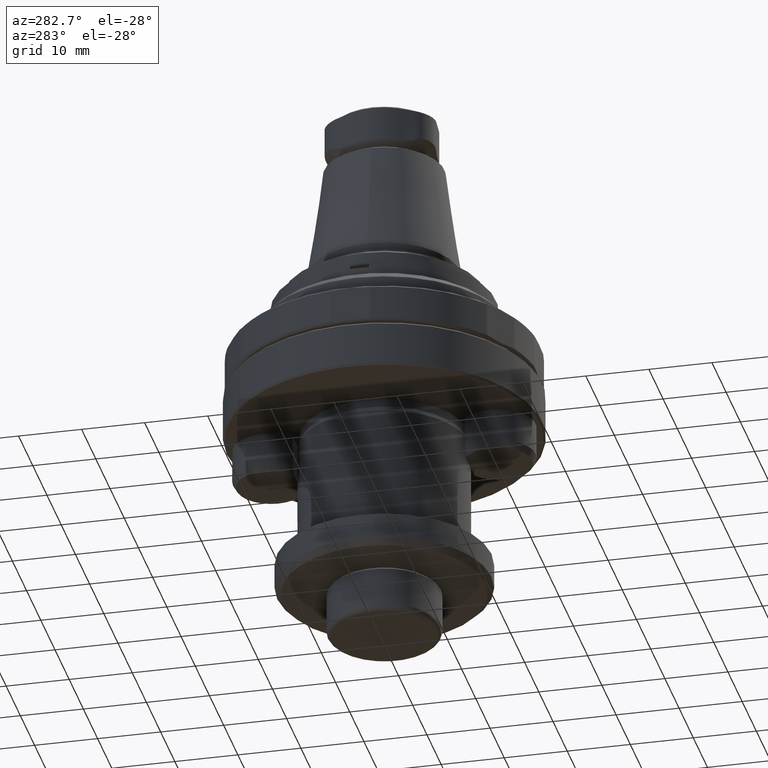
[diagram: clean part render]
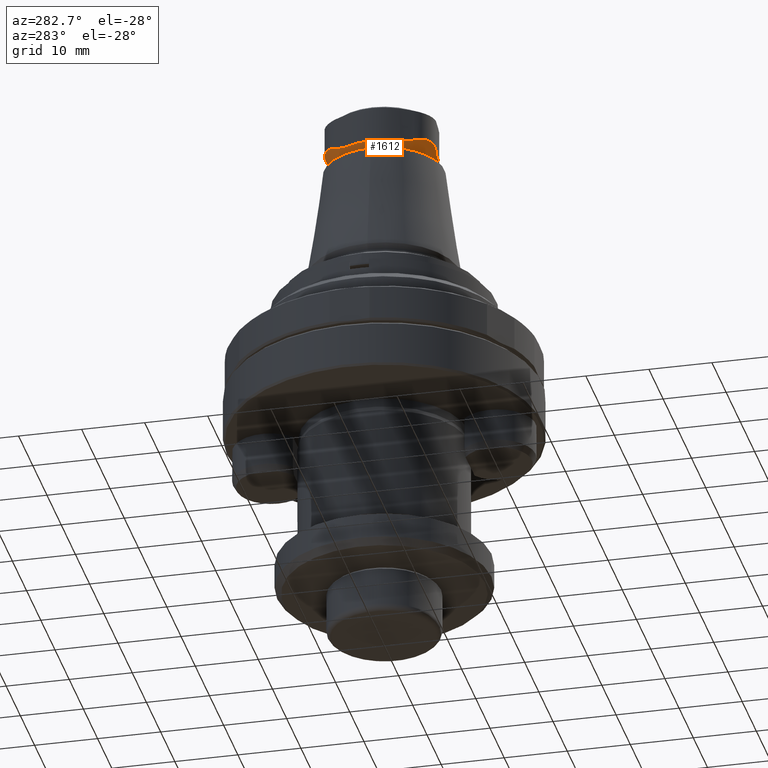
[diagram: same view with one face highlighted and labeled with its STEP entity id]
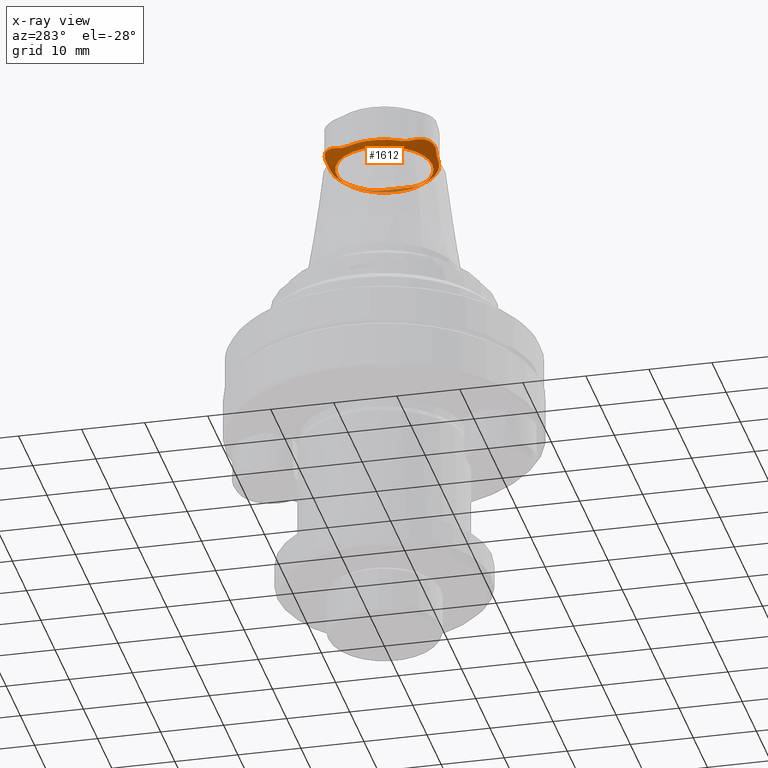
[diagram: x-ray of the same camera — body ghosted, the highlighted face saturated]
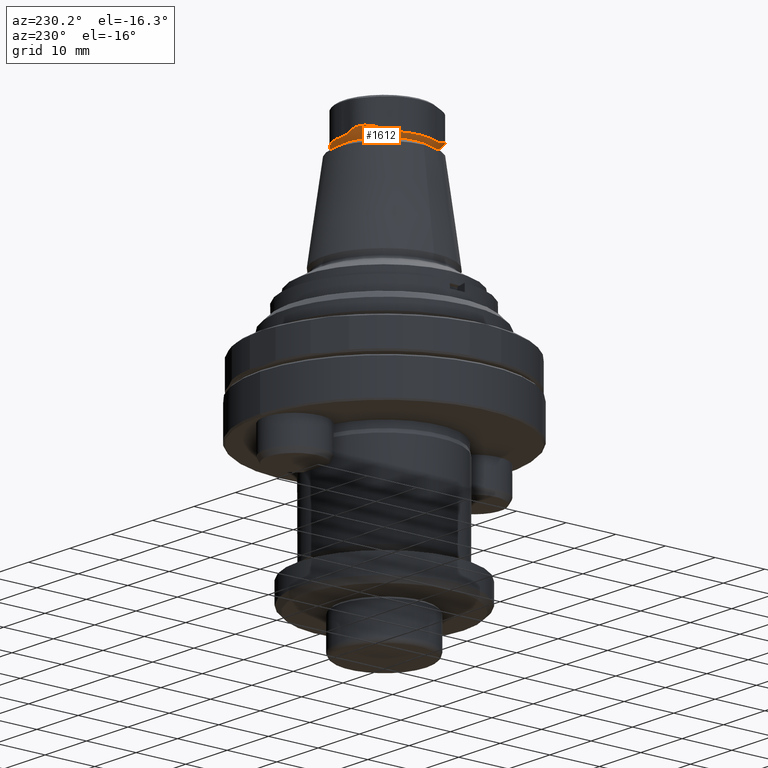
[diagram: same view with one face highlighted and labeled with its STEP entity id]
A machine part, auxiliary view. The second image highlights one B-rep face of the part: STEP entity #1612.
The next image is the same camera in x-ray: the body ghosted, the highlighted face saturated — about 10% of this face is hidden behind the body in this view.
A second angle (auxiliary view) of the same face is appended — the face is thin or edge-on in the first view.
In plain terms, the highlighted conical surface has half-angle 50 deg.
Its self-contained STEP definition (entity closure, byte-faithful):
#278=B_SPLINE_CURVE_WITH_KNOTS('',3,(#2526,#2527,#2528,#2529),
 .UNSPECIFIED.,.F.,.F.,(4,4),(0.00220573348403991,0.00220641296792716),
 .UNSPECIFIED.);
#279=B_SPLINE_CURVE_WITH_KNOTS('',3,(#2535,#2536,#2537,#2538),
 .UNSPECIFIED.,.F.,.F.,(4,4),(2.13829619546242E-7,6.36102570339594E-7),
 .UNSPECIFIED.);
#280=B_SPLINE_CURVE_WITH_KNOTS('',3,(#2544,#2545,#2546,#2547),
 .UNSPECIFIED.,.F.,.F.,(4,4),(0.000711073122248395,0.000711495386673685),
 .UNSPECIFIED.);
#281=B_SPLINE_CURVE_WITH_KNOTS('',3,(#2553,#2554,#2555,#2556),
 .UNSPECIFIED.,.F.,.F.,(4,4),(-0.00149142190673173,-0.00149074545838019),
 .UNSPECIFIED.);
#282=B_SPLINE_CURVE_WITH_KNOTS('',3,(#2562,#2563,#2564,#2565),
 .UNSPECIFIED.,.F.,.F.,(4,4),(0.00220574344068717,0.00220642292354577),
 .UNSPECIFIED.);
#283=B_SPLINE_CURVE_WITH_KNOTS('',3,(#2571,#2572,#2573,#2574),
 .UNSPECIFIED.,.F.,.F.,(4,4),(2.23843126184813E-7,6.46115469005605E-7),
 .UNSPECIFIED.);
#284=B_SPLINE_CURVE_WITH_KNOTS('',3,(#2578,#2579,#2580,#2581),
 .UNSPECIFIED.,.F.,.F.,(4,4),(-0.00149142196448524,-0.00149074552080126),
 .UNSPECIFIED.);
#285=B_SPLINE_CURVE_WITH_KNOTS('',3,(#2589,#2590,#2591,#2592),
 .UNSPECIFIED.,.F.,.F.,(4,4),(0.000711073121647748,0.00071149538668107),
 .UNSPECIFIED.);
#286=B_SPLINE_CURVE_WITH_KNOTS('',3,(#2598,#2599,#2600,#2601),
 .UNSPECIFIED.,.F.,.F.,(4,4),(0.00219557365460744,0.00219625290231449),
 .UNSPECIFIED.);
#287=B_SPLINE_CURVE_WITH_KNOTS('',3,(#2607,#2608,#2609,#2610),
 .UNSPECIFIED.,.F.,.F.,(4,4),(2.75275941976687E-7,6.97543333673544E-7),
 .UNSPECIFIED.);
#288=B_SPLINE_CURVE_WITH_KNOTS('',3,(#2616,#2617,#2618,#2619),
 .UNSPECIFIED.,.F.,.F.,(4,4),(0.000711073120757117,0.000711495386623491),
 .UNSPECIFIED.);
#289=B_SPLINE_CURVE_WITH_KNOTS('',3,(#2625,#2626,#2627,#2628),
 .UNSPECIFIED.,.F.,.F.,(4,4),(-0.0014869365276094,-0.00148625392007078),
 .UNSPECIFIED.);
#290=B_SPLINE_CURVE_WITH_KNOTS('',3,(#2635,#2636,#2637,#2638,#2639),
 .UNSPECIFIED.,.F.,.F.,(4,1,4),(0.,0.5,1.),.UNSPECIFIED.);
#291=B_SPLINE_CURVE_WITH_KNOTS('',3,(#2640,#2641,#2642,#2643,#2644),
 .UNSPECIFIED.,.F.,.F.,(4,1,4),(6.28536839101216E-7,0.00283798644783332,
0.00567534435882753),.UNSPECIFIED.);
#292=B_SPLINE_CURVE_WITH_KNOTS('',3,(#2645,#2646,#2647,#2648,#2649),
 .UNSPECIFIED.,.F.,.F.,(4,1,4),(0.,0.5,1.),.UNSPECIFIED.);
#293=B_SPLINE_CURVE_WITH_KNOTS('',3,(#2651,#2652,#2653,#2654,#2655),
 .UNSPECIFIED.,.F.,.F.,(4,1,4),(0.,0.5,1.),.UNSPECIFIED.);
#294=B_SPLINE_CURVE_WITH_KNOTS('',3,(#2656,#2657,#2658,#2659,#2660),
 .UNSPECIFIED.,.F.,.F.,(4,1,4),(6.38416918319475E-7,0.0028379963295176,
0.00567535424211689),.UNSPECIFIED.);
#295=B_SPLINE_CURVE_WITH_KNOTS('',3,(#2661,#2662,#2663,#2664,#2665),
 .UNSPECIFIED.,.F.,.F.,(4,1,4),(0.,0.5,1.),.UNSPECIFIED.);
#296=B_SPLINE_CURVE_WITH_KNOTS('',3,(#2667,#2668,#2669,#2670,#2671),
 .UNSPECIFIED.,.F.,.F.,(4,1,4),(0.,0.5,1.),.UNSPECIFIED.);
#297=B_SPLINE_CURVE_WITH_KNOTS('',3,(#2672,#2673,#2674,#2675,#2676),
 .UNSPECIFIED.,.F.,.F.,(4,1,4),(6.89278240185046E-7,0.00283804760185316,
0.00567540592546613),.UNSPECIFIED.);
#298=B_SPLINE_CURVE_WITH_KNOTS('',3,(#2677,#2678,#2679,#2680,#2681),
 .UNSPECIFIED.,.F.,.F.,(4,1,4),(0.,0.5,1.),.UNSPECIFIED.);
#402=ORIENTED_EDGE('',*,*,#847,.T.);
#403=ORIENTED_EDGE('',*,*,#836,.T.);
#404=ORIENTED_EDGE('',*,*,#848,.T.);
#405=ORIENTED_EDGE('',*,*,#829,.T.);
#406=ORIENTED_EDGE('',*,*,#849,.T.);
#407=ORIENTED_EDGE('',*,*,#833,.T.);
#408=ORIENTED_EDGE('',*,*,#850,.T.);
#409=ORIENTED_EDGE('',*,*,#827,.T.);
#410=ORIENTED_EDGE('',*,*,#851,.T.);
#411=ORIENTED_EDGE('',*,*,#824,.T.);
#412=ORIENTED_EDGE('',*,*,#852,.T.);
#413=ORIENTED_EDGE('',*,*,#821,.T.);
#414=ORIENTED_EDGE('',*,*,#853,.T.);
#415=ORIENTED_EDGE('',*,*,#818,.T.);
#416=ORIENTED_EDGE('',*,*,#854,.T.);
#417=ORIENTED_EDGE('',*,*,#815,.T.);
#418=ORIENTED_EDGE('',*,*,#855,.T.);
#419=ORIENTED_EDGE('',*,*,#812,.T.);
#420=ORIENTED_EDGE('',*,*,#856,.T.);
#421=ORIENTED_EDGE('',*,*,#845,.T.);
#422=ORIENTED_EDGE('',*,*,#857,.T.);
#423=ORIENTED_EDGE('',*,*,#842,.T.);
#424=ORIENTED_EDGE('',*,*,#858,.T.);
#425=ORIENTED_EDGE('',*,*,#839,.T.);
#426=ORIENTED_EDGE('',*,*,#859,.T.);
#812=EDGE_CURVE('',#1039,#1038,#278,.T.);
#815=EDGE_CURVE('',#1041,#1040,#279,.T.);
#818=EDGE_CURVE('',#1043,#1042,#280,.T.);
#821=EDGE_CURVE('',#1045,#1044,#281,.T.);
#824=EDGE_CURVE('',#1047,#1046,#282,.T.);
#827=EDGE_CURVE('',#1049,#1048,#283,.T.);
#829=EDGE_CURVE('',#1050,#1051,#284,.T.);
#833=EDGE_CURVE('',#1053,#1052,#285,.T.);
#836=EDGE_CURVE('',#1055,#1054,#286,.T.);
#839=EDGE_CURVE('',#1057,#1056,#287,.T.);
#842=EDGE_CURVE('',#1059,#1058,#288,.T.);
#845=EDGE_CURVE('',#1061,#1060,#289,.T.);
#847=EDGE_CURVE('',#1062,#1062,#1181,.T.);
#848=EDGE_CURVE('',#1054,#1050,#1182,.F.);
#849=EDGE_CURVE('',#1051,#1053,#290,.T.);
#850=EDGE_CURVE('',#1052,#1049,#291,.T.);
#851=EDGE_CURVE('',#1048,#1047,#292,.T.);
#852=EDGE_CURVE('',#1046,#1045,#1183,.F.);
#853=EDGE_CURVE('',#1044,#1043,#293,.T.);
#854=EDGE_CURVE('',#1042,#1041,#294,.T.);
#855=EDGE_CURVE('',#1040,#1039,#295,.T.);
#856=EDGE_CURVE('',#1038,#1061,#1184,.F.);
#857=EDGE_CURVE('',#1060,#1059,#296,.T.);
#858=EDGE_CURVE('',#1058,#1057,#297,.T.);
#859=EDGE_CURVE('',#1056,#1055,#298,.T.);
#1038=VERTEX_POINT('',#2525);
#1039=VERTEX_POINT('',#2530);
#1040=VERTEX_POINT('',#2534);
#1041=VERTEX_POINT('',#2539);
#1042=VERTEX_POINT('',#2543);
#1043=VERTEX_POINT('',#2548);
#1044=VERTEX_POINT('',#2552);
#1045=VERTEX_POINT('',#2557);
#1046=VERTEX_POINT('',#2561);
#1047=VERTEX_POINT('',#2566);
#1048=VERTEX_POINT('',#2570);
#1049=VERTEX_POINT('',#2575);
#1050=VERTEX_POINT('',#2582);
#1051=VERTEX_POINT('',#2583);
#1052=VERTEX_POINT('',#2588);
#1053=VERTEX_POINT('',#2593);
#1054=VERTEX_POINT('',#2597);
#1055=VERTEX_POINT('',#2602);
#1056=VERTEX_POINT('',#2606);
#1057=VERTEX_POINT('',#2611);
#1058=VERTEX_POINT('',#2615);
#1059=VERTEX_POINT('',#2620);
#1060=VERTEX_POINT('',#2624);
#1061=VERTEX_POINT('',#2629);
#1062=VERTEX_POINT('',#2633);
#1181=CIRCLE('',#1744,7.61318754579721);
#1182=CIRCLE('',#1745,8.5);
#1183=CIRCLE('',#1746,8.5);
#1184=CIRCLE('',#1747,8.5);
#1281=EDGE_LOOP('',(#402));
#1282=EDGE_LOOP('',(#403,#404,#405,#406,#407,#408,#409,#410,#411,#412,#413,
#414,#415,#416,#417,#418,#419,#420,#421,#422,#423,#424,#425,#426));
#1436=FACE_BOUND('',#1281,.T.);
#1437=FACE_BOUND('',#1282,.T.);
#1578=CONICAL_SURFACE('',#1743,8.70721239031346,0.872664625997165);
#1612=ADVANCED_FACE('',(#1436,#1437),#1578,.T.);
#1743=AXIS2_PLACEMENT_3D('',#2631,#1993,#1994);
#1744=AXIS2_PLACEMENT_3D('',#2632,#1995,#1996);
#1745=AXIS2_PLACEMENT_3D('',#2634,#1997,#1998);
#1746=AXIS2_PLACEMENT_3D('',#2650,#1999,#2000);
#1747=AXIS2_PLACEMENT_3D('',#2666,#2001,#2002);
#1993=DIRECTION('',(0.,0.,1.));
#1994=DIRECTION('',(1.,-6.12303176911189E-17,0.));
#1995=DIRECTION('',(0.,0.,1.));
#1996=DIRECTION('',(0.,-1.,0.));
#1997=DIRECTION('',(0.,0.,1.));
#1998=DIRECTION('',(1.,0.,0.));
#1999=DIRECTION('',(0.,0.,1.));
#2000=DIRECTION('',(1.,0.,0.));
#2001=DIRECTION('',(0.,0.,1.));
#2002=DIRECTION('',(1.,0.,0.));
#2525=CARTESIAN_POINT('',(0.0936316434552864,8.49948428525778,33.0490544971312));
#2526=CARTESIAN_POINT('',(0.0929577602560676,8.49949172632943,33.0490545342063));
#2527=CARTESIAN_POINT('',(0.093182386691562,8.49948924016348,33.0490545094897));
#2528=CARTESIAN_POINT('',(0.0934070144246196,8.49948675980621,33.0490544971313));
#2529=CARTESIAN_POINT('',(0.0936316434552854,8.4994842852578,33.0490544971313));
#2530=CARTESIAN_POINT('',(0.092957760256068,8.49949172632943,33.0490545342063));
#2534=CARTESIAN_POINT('',(-2.04682082129924,8.70084702736705,33.4168791594687));
#2535=CARTESIAN_POINT('',(-2.04721576929347,8.70091756181429,33.4170126670296));
#2536=CARTESIAN_POINT('',(-2.04708411462961,8.70089406510488,33.4169681734288));
#2537=CARTESIAN_POINT('',(-2.04695245870386,8.70087057026652,33.4169236832362));
#2538=CARTESIAN_POINT('',(-2.04682080151614,8.70084707729929,33.4168791964522));
#2539=CARTESIAN_POINT('',(-2.04721576929347,8.70091756181429,33.4170126670296));
#2543=CARTESIAN_POINT('',(-6.51160776011941,6.12339964414294,33.4170126670298));
#2544=CARTESIAN_POINT('',(-6.51174419986763,6.12302235738794,33.4168791991519));
#2545=CARTESIAN_POINT('',(-6.51169871770025,6.12314811979693,33.4169236850362));
#2546=CARTESIAN_POINT('',(-6.51165323778422,6.12327388204857,33.4169681743289));
#2547=CARTESIAN_POINT('',(-6.51160776011941,6.12339964414294,33.4170126670298));
#2548=CARTESIAN_POINT('',(-6.51174419986762,6.12302235738794,33.4168791991519));
#2552=CARTESIAN_POINT('',(-7.40725455318372,4.16924204535135,33.0490544971312));
#2553=CARTESIAN_POINT('',(-7.4075851318281,4.1686547607985,33.0490544971317));
#2554=CARTESIAN_POINT('',(-7.40747495975369,4.16885053355185,33.0490544971317));
#2555=CARTESIAN_POINT('',(-7.40736479347685,4.16904630787609,33.0490545094903));
#2556=CARTESIAN_POINT('',(-7.40725463299734,4.16924208377114,33.049054534207));
#2557=CARTESIAN_POINT('',(-7.40758513182809,4.16865476079849,33.0490544971317));
#2561=CARTESIAN_POINT('',(-7.40758513182767,-4.16865476079822,33.0490544971312));
#2562=CARTESIAN_POINT('',(-7.40725463487304,-4.16924208043758,33.0490545342066));
#2563=CARTESIAN_POINT('',(-7.40736479484544,-4.16904630544391,33.0490545094901));
#2564=CARTESIAN_POINT('',(-7.40747496049705,-4.16885053223085,33.0490544971316));
#2565=CARTESIAN_POINT('',(-7.40758513182808,-4.16865476079845,33.0490544971316));
#2566=CARTESIAN_POINT('',(-7.40725463487304,-4.16924208043758,33.0490545342066));
#2570=CARTESIAN_POINT('',(-6.51174414929203,-6.12302234248025,33.4168791596661));
#2571=CARTESIAN_POINT('',(-6.51160776011941,-6.12339964414286,33.4170126670298));
#2572=CARTESIAN_POINT('',(-6.51165323863693,-6.12327387969044,33.4169681734946));
#2573=CARTESIAN_POINT('',(-6.51169871940576,-6.12314811508073,33.4169236833678));
#2574=CARTESIAN_POINT('',(-6.51174420242602,-6.12302235031366,33.4168791966495));
#2575=CARTESIAN_POINT('',(-6.51160776011941,-6.12339964414286,33.4170126670298));
#2578=CARTESIAN_POINT('',(0.0936316434552818,-8.49948428525773,33.0490544971312));
#2579=CARTESIAN_POINT('',(0.0934070147989732,-8.49948675980202,33.0490544971312));
#2580=CARTESIAN_POINT('',(0.0931823876810054,-8.49948924015249,33.0490545094896));
#2581=CARTESIAN_POINT('',(0.092957762101317,-8.49949172630894,33.0490545342061));
#2582=CARTESIAN_POINT('',(0.0936316434552852,-8.49948428525773,33.0490544971312));
#2583=CARTESIAN_POINT('',(0.0929577497960139,-8.49949163804093,33.0490544600319));
#2588=CARTESIAN_POINT('',(-2.04721576929348,-8.70091756181423,33.4170126670295));
#2589=CARTESIAN_POINT('',(-2.04682080892173,-8.70084707862068,33.4168791989545));
#2590=CARTESIAN_POINT('',(-2.04695246364088,-8.7008705711475,33.4169236849045));
#2591=CARTESIAN_POINT('',(-2.0470841170981,-8.70089406554537,33.4169681742629));
#2592=CARTESIAN_POINT('',(-2.04721576929349,-8.70091756181423,33.4170126670295));
#2593=CARTESIAN_POINT('',(-2.04682080892173,-8.70084707862068,33.4168791989545));
#2597=CARTESIAN_POINT('',(7.31395348837204,-4.33082952445954,33.0490544971312));
#2598=CARTESIAN_POINT('',(7.31429688550521,-4.33024962581417,33.0490545342083));
#2599=CARTESIAN_POINT('',(7.31418241401074,-4.33044292370034,33.0490545094898));
#2600=CARTESIAN_POINT('',(7.31406794829963,-4.33063622324871,33.0490544971308));
#2601=CARTESIAN_POINT('',(7.31395348837164,-4.33082952445922,33.0490544971308));
#2602=CARTESIAN_POINT('',(7.31429688550518,-4.33024962581422,33.0490545342083));
#2606=CARTESIAN_POINT('',(8.55856499046477,-2.57782470294231,33.4168791795095));
#2607=CARTESIAN_POINT('',(8.5588235294112,-2.57751791767133,33.417012667029));
#2608=CARTESIAN_POINT('',(8.55873735448603,-2.57762018423055,33.416968174024));
#2609=CARTESIAN_POINT('',(8.55865118055027,-2.57772245281806,33.4169236844272));
#2610=CARTESIAN_POINT('',(8.55856500760393,-2.57782472343401,33.4168791982388));
#2611=CARTESIAN_POINT('',(8.5588235294112,-2.57751791767133,33.417012667029));
#2615=CARTESIAN_POINT('',(8.5588235294112,2.5775179176714,33.417012667029));
#2616=CARTESIAN_POINT('',(8.55856500853776,2.5778247223258,33.4168791987209));
#2617=CARTESIAN_POINT('',(8.55865118117283,2.57772245207929,33.4169236847486));
#2618=CARTESIAN_POINT('',(8.55873735479732,2.57762018386119,33.4169681741847));
#2619=CARTESIAN_POINT('',(8.5588235294112,2.57751791767139,33.417012667029));
#2620=CARTESIAN_POINT('',(8.55856500853776,2.5778247223258,33.4168791987209));
#2624=CARTESIAN_POINT('',(7.31429680349732,4.33024959081042,33.0490544971312));
#2625=CARTESIAN_POINT('',(7.31395348837163,4.33082952445931,33.0490544971308));
#2626=CARTESIAN_POINT('',(7.3140679471664,4.33063622516259,33.0490544971308));
#2627=CARTESIAN_POINT('',(7.31418241123767,4.33044292838339,33.0490545094896));
#2628=CARTESIAN_POINT('',(7.31429688058549,4.33024963412174,33.0490545342073));
#2629=CARTESIAN_POINT('',(7.31395348837163,4.33082952445932,33.0490544971308));
#2631=CARTESIAN_POINT('',(0.,0.,33.2229263374186));
#2632=CARTESIAN_POINT('',(0.,0.,32.3049304938863));
#2633=CARTESIAN_POINT('',(0.,-7.61318754579721,32.3049304938863));
#2634=CARTESIAN_POINT('',(0.,0.,33.0490544971312));
#2635=CARTESIAN_POINT('',(0.0929577497960163,-8.49949163804093,33.0490544600319));
#2636=CARTESIAN_POINT('',(-0.267965717100785,-8.50343900745549,33.0490544600319));
#2637=CARTESIAN_POINT('',(-1.01219494839696,-8.54399631412531,33.1181306951001));
#2638=CARTESIAN_POINT('',(-1.69165561413905,-8.63742312117797,33.2968300574671));
#2639=CARTESIAN_POINT('',(-2.04682082250487,-8.70084702758228,33.4168791598761));
#2640=CARTESIAN_POINT('',(-2.04721576929348,-8.70091756181423,33.4170126670295));
#2641=CARTESIAN_POINT('',(-2.94247595704298,-8.86069669810254,33.7195720164001));
#2642=CARTESIAN_POINT('',(-4.92411905550913,-8.53669427146189,34.0566743381499));
#2643=CARTESIAN_POINT('',(-6.20222494362387,-6.97895436822041,33.7196948116432));
#2644=CARTESIAN_POINT('',(-6.51160776011941,-6.12339964414286,33.4170126670298));
#2645=CARTESIAN_POINT('',(-6.51174414929203,-6.12302234248025,33.4168791596661));
#2646=CARTESIAN_POINT('',(-6.63440005887947,-5.78372824244875,33.2968300382809));
#2647=CARTESIAN_POINT('',(-6.89322049982406,-5.1485844422533,33.1181306462712));
#2648=CARTESIAN_POINT('',(-7.23021136708764,-4.48378457716558,33.0490544600321));
#2649=CARTESIAN_POINT('',(-7.40725454825801,-4.16924205410152,33.0490544600321));
#2650=CARTESIAN_POINT('',(0.,0.,33.0490544971312));
#2651=CARTESIAN_POINT('',(-7.40725455005877,4.16924205090327,33.0490544600325));
#2652=CARTESIAN_POINT('',(-7.23021136780356,4.4837845756862,33.0490544600325));
#2653=CARTESIAN_POINT('',(-6.89322050060794,5.14858444050049,33.1181306457924));
#2654=CARTESIAN_POINT('',(-6.63440005872644,5.7837282427719,33.2968300383381));
#2655=CARTESIAN_POINT('',(-6.51174414887565,6.12302234363212,33.4168791600736));
#2656=CARTESIAN_POINT('',(-6.51160776011941,6.12339964414294,33.4170126670298));
#2657=CARTESIAN_POINT('',(-6.20235058255707,6.97860693139757,33.7195718938219));
#2658=CARTESIAN_POINT('',(-4.93093457932276,8.53275939033609,34.0566743664936));
#2659=CARTESIAN_POINT('',(-2.94283949761197,8.86076158002064,33.7196948774405));
#2660=CARTESIAN_POINT('',(-2.04721576929347,8.7009175618143,33.4170126670296));
#2661=CARTESIAN_POINT('',(-2.04682082129925,8.70084702736705,33.4168791594687));
#2662=CARTESIAN_POINT('',(-1.69165561479525,8.63742312132986,33.2968300577523));
#2663=CARTESIAN_POINT('',(-1.01219495419325,8.54399631469287,33.1181306964557));
#2664=CARTESIAN_POINT('',(-0.267965721833707,8.50343900778619,33.0490544600314));
#2665=CARTESIAN_POINT('',(0.0929577397559283,8.49949163815017,33.0490544600314));
#2666=CARTESIAN_POINT('',(0.,0.,33.0490544971312));
#2667=CARTESIAN_POINT('',(7.31429680674311,4.33024958532791,33.0490544600314));
#2668=CARTESIAN_POINT('',(7.49817709372905,4.01965432618263,33.0490544600314));
#2669=CARTESIAN_POINT('',(7.90541552653568,3.39541134458112,33.1181307544237));
#2670=CARTESIAN_POINT('',(8.32605569783139,2.85369477128974,33.2968300804843));
#2671=CARTESIAN_POINT('',(8.55856497112884,2.57782468504288,33.4168791596425));
#2672=CARTESIAN_POINT('',(8.55882352941121,2.5775179176714,33.417012667029));
#2673=CARTESIAN_POINT('',(9.14482503797253,1.88209105356735,33.7195713057841));
#2674=CARTESIAN_POINT('',(9.85505458814384,0.00393479791320516,34.0566748322445));
#2675=CARTESIAN_POINT('',(9.14506370859049,-1.88180781545787,33.7196945338923));
#2676=CARTESIAN_POINT('',(8.5588235294112,-2.57751791767133,33.417012667029));
#2677=CARTESIAN_POINT('',(8.55856497112862,-2.57782468504307,33.4168791596424));
#2678=CARTESIAN_POINT('',(8.32605569817741,-2.85369477087908,33.2968300806629));
#2679=CARTESIAN_POINT('',(7.90541552768404,-3.39541134296754,33.1181307548816));
#2680=CARTESIAN_POINT('',(7.4981770947009,-4.01965432474226,33.0490544600318));
#2681=CARTESIAN_POINT('',(7.31429680861631,-4.33024958216477,33.0490544600318));